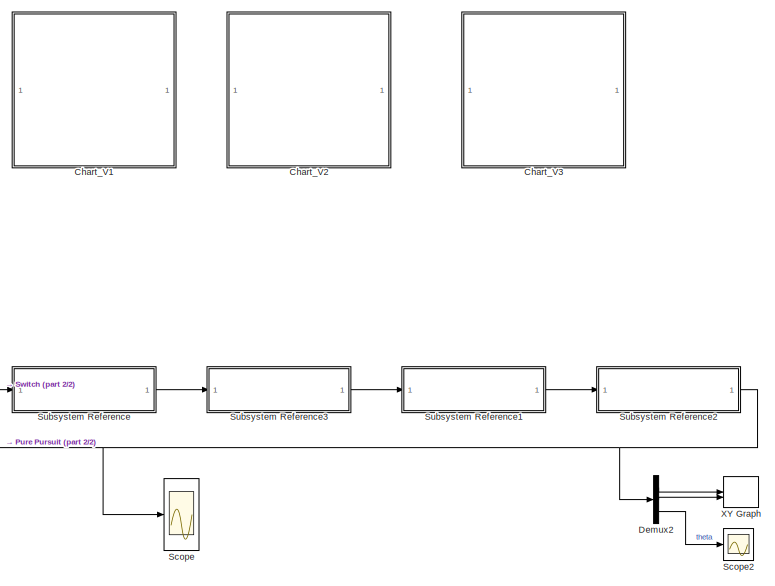
[diagram: root canvas - part 1/2, right side, full height]
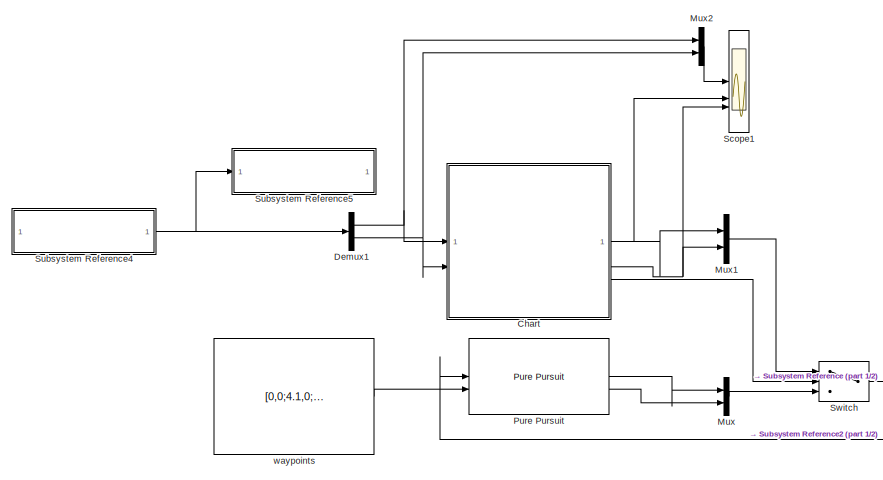
[diagram: root canvas - part 2/2, left side, full height]
MODEL slx_2fbee1cd0cb7
KIND model
CONFIG AbsTol = auto
CONFIG EnableMultiTasking = on
CONFIG FixedStep = auto
CONFIG MaxStep = auto
CONFIG MinStep = auto
CONFIG RelTol = 1e-3
CONFIG SampleTimeConstraint = Unconstrained
CONFIG SolverName = FixedStepAuto
CONFIG StartTime = 0.0
CONFIG StopTime = inf
WORKSPACE source: mxarray member
WORKSPACE d: Simulink.Parameter (value not decoded)
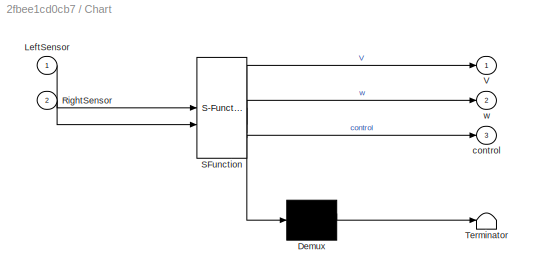
BLOCK [SubSystem] Chart
  ErrorFcn = Stateflow.Translate.translate
  PermitHierarchicalResolution = ExplicitOnly
  SFBlockType = Chart
  TreatAsAtomicUnit = on
BLOCK [Demux] Chart/ Demux 
  Outputs = 1
BLOCK [S-Function] Chart/ SFunction 
  EnableBusSupport = on
  FunctionName = sf_sfun
  PortCounts = [2 4]
  SFcnIsStateOwnerBlock = off
  SFunctionDeploymentMode = off
  Tag = Stateflow S-Function 3
BLOCK [Terminator] Chart/ Terminator 
BLOCK [Inport] Chart/LeftSensor
BLOCK [Inport] Chart/RightSensor
  Port = 2
BLOCK [Outport] Chart/V
BLOCK [Outport] Chart/control
  Port = 3
BLOCK [Outport] Chart/w
  Port = 2
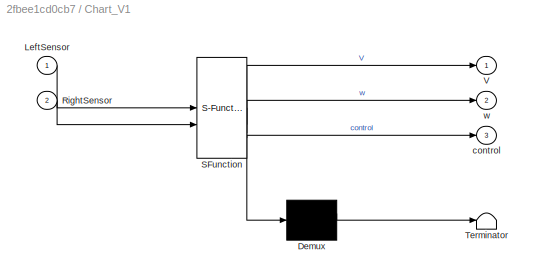
BLOCK [SubSystem] Chart_V1
  Commented = on
  ErrorFcn = Stateflow.Translate.translate
  PermitHierarchicalResolution = ExplicitOnly
  SFBlockType = Chart
  TreatAsAtomicUnit = on
BLOCK [Demux] Chart_V1/ Demux 
  Outputs = 1
BLOCK [S-Function] Chart_V1/ SFunction 
  EnableBusSupport = on
  FunctionName = sf_sfun
  PortCounts = [2 4]
  SFcnIsStateOwnerBlock = off
  SFunctionDeploymentMode = off
  Tag = Stateflow S-Function 1
BLOCK [Terminator] Chart_V1/ Terminator 
BLOCK [Inport] Chart_V1/LeftSensor
BLOCK [Inport] Chart_V1/RightSensor
  Port = 2
BLOCK [Outport] Chart_V1/V
BLOCK [Outport] Chart_V1/control
  Port = 3
BLOCK [Outport] Chart_V1/w
  Port = 2
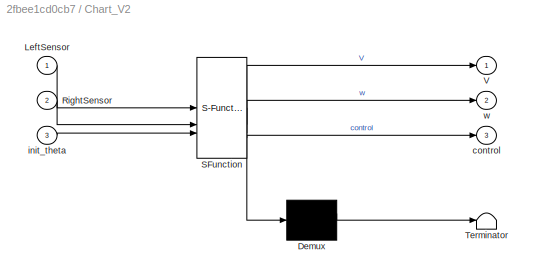
BLOCK [SubSystem] Chart_V2
  Commented = on
  ErrorFcn = Stateflow.Translate.translate
  PermitHierarchicalResolution = ExplicitOnly
  SFBlockType = Chart
  TreatAsAtomicUnit = on
BLOCK [Demux] Chart_V2/ Demux 
  Outputs = 1
BLOCK [S-Function] Chart_V2/ SFunction 
  EnableBusSupport = on
  FunctionName = sf_sfun
  PortCounts = [3 4]
  SFcnIsStateOwnerBlock = off
  SFunctionDeploymentMode = off
  Tag = Stateflow S-Function 2
BLOCK [Terminator] Chart_V2/ Terminator 
BLOCK [Inport] Chart_V2/LeftSensor
BLOCK [Inport] Chart_V2/RightSensor
  Port = 2
BLOCK [Outport] Chart_V2/V
BLOCK [Outport] Chart_V2/control
  Port = 3
BLOCK [Inport] Chart_V2/init_theta
  Port = 3
BLOCK [Outport] Chart_V2/w
  Port = 2
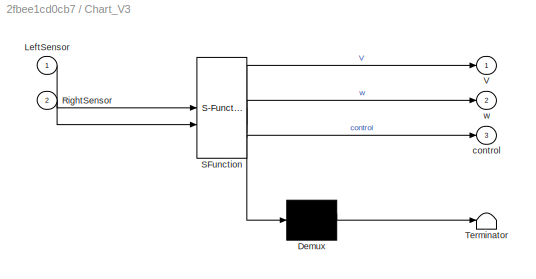
BLOCK [SubSystem] Chart_V3
  Commented = on
  ErrorFcn = Stateflow.Translate.translate
  PermitHierarchicalResolution = ExplicitOnly
  SFBlockType = Chart
  TreatAsAtomicUnit = on
BLOCK [Demux] Chart_V3/ Demux 
  Outputs = 1
BLOCK [S-Function] Chart_V3/ SFunction 
  EnableBusSupport = on
  FunctionName = sf_sfun
  PortCounts = [2 4]
  SFcnIsStateOwnerBlock = off
  SFunctionDeploymentMode = off
  Tag = Stateflow S-Function 4
BLOCK [Terminator] Chart_V3/ Terminator 
BLOCK [Inport] Chart_V3/LeftSensor
BLOCK [Inport] Chart_V3/RightSensor
  Port = 2
BLOCK [Outport] Chart_V3/V
BLOCK [Outport] Chart_V3/control
  Port = 3
BLOCK [Outport] Chart_V3/w
  Port = 2
BLOCK [Demux] Demux1
  Outputs = 2
BLOCK [Demux] Demux2
  Outputs = 3
BLOCK [Mux] Mux
  DisplayOption = bar
  Inputs = 2
BLOCK [Mux] Mux1
  DisplayOption = bar
  Inputs = 2
BLOCK [Mux] Mux2
  DisplayOption = bar
  Inputs = 2
BLOCK [Reference] Pure Pursuit  REF=robotalgslib/Pure Pursuit
  LibrarySourceBlock = navlib/Control Algorithms/Pure Pursuit
  SourceBlock = robotalgslib/Pure Pursuit
  SourceType = nav.slalgs.internal.PurePursuit
BLOCK [Scope] Scope
  Floating = off
  NumInputPorts = 1
  ScopeSpecificationString = Simulink.scopes.TimeScopeBlockCfg('CurrentConfiguration', extmgr.ConfigurationSet(extmgr.Configuration('Core','General UI',true),extmgr.Configuration('Core','Source UI',true),extmgr.Configuration('Sources','WiredSimulink',true),extmgr.Configuration('Visuals','Time Domain',true,'SerializedDisplays',{struct('MinYLimReal','-33.39657','MaxYLimReal','8.03669','YLabelReal','','MinYLimMag','0.00000','Max...<+1767ch>
BLOCK [Scope] Scope1
  Floating = off
  NumInputPorts = 3
  ScopeSpecificationString = Simulink.scopes.TimeScopeBlockCfg('CurrentConfiguration', extmgr.ConfigurationSet(extmgr.Configuration('Core','General UI',true),extmgr.Configuration('Core','Source UI',true),extmgr.Configuration('Sources','WiredSimulink',true,'DataLoggingVariableName','ScopeData1'),extmgr.Configuration('Visuals','Time Domain',true,'SerializedDisplays',{struct('MinYLimReal','-0.15051','MaxYLimReal','1.60473','YLab...<+3042ch>
BLOCK [Scope] Scope2
  Floating = off
  NumInputPorts = 1
  ScopeSpecificationString = Simulink.scopes.TimeScopeBlockCfg('CurrentConfiguration', extmgr.ConfigurationSet(extmgr.Configuration('Core','General UI',true),extmgr.Configuration('Core','Source UI',true),extmgr.Configuration('Sources','WiredSimulink',true,'DataLoggingVariableName','ScopeData2'),extmgr.Configuration('Visuals','Time Domain',true,'SerializedDisplays',{struct('MinYLimReal','-17.37263','MaxYLimReal','1.93029','YLa...<+1397ch>
BLOCK [SubSystem] Subsystem Reference
  ReferencedSubsystem = MCI
BLOCK [SubSystem] Subsystem Reference1
  ReferencedSubsystem = MCD
BLOCK [SubSystem] Subsystem Reference2
  ReferencedSubsystem = Odometria
BLOCK [SubSystem] Subsystem Reference3
  ReferencedSubsystem = PieroCV
BLOCK [SubSystem] Subsystem Reference4
  ReferencedSubsystem = Sonars
BLOCK [SubSystem] Subsystem Reference5
  ReferencedSubsystem = Senalizacion
BLOCK [Switch] Switch
  Criteria = u2 > Threshold
  InputSameDT = off
  OutDataTypeStr = double
  SaturateOnIntegerOverflow = off
BLOCK [Record] XY Graph
  CompatibilityTag = XY
  FileSettingsInternal = {"entries":[{"content":{"excelSettings":{"content":{},"type":"Streamout.ExcelSettings"}},"type":"Streamout.FileSettingStorage","uuid":""}],"packageUris":["http:\/\/schema.mathworks.com\/mf0\/streamout_blocks\/R2020a"],"version":"1.0"}
  Layout = [1 1]
  SignalsInternal = {"entries":[{"content":{"signals":[{"content":{"blockPath":[],"channel":[],"dimensions":[1],"domain":"","lineColor":"#a2142f","plots":[1],"port":1,"sid":[],"signalID":10135,"signalName":"Demux2:1"},"type":"RecordBlkView.Signal","uuid":""},{"content":{"blockPath":[],"channel":[],"dimensions":[1],"domain":"","lineColor":"#139fff","plots":[1],"port":2,"sid":[],"signalID":10138,"signalName":"Demux2:2"...<+188ch>
  VisualizationBindings = {"xyplotplugin":{"info":[{"series":[{"bindingParametersList":[{"parameter":"X-Axis","signalID":10135,"signalName":"Demux2:1"},{"parameter":"Y-Axis","signalID":10138,"signalName":"Demux2:2"}],"seriesID":45707}],"subplotID":1}]}}
BLOCK [Constant] waypoints
  Value = [0,0;4.1,0; 4.32, -11.2; 3.55, -11.2; 3.55, -15.58]
NET Chart:1 -> Mux1:1, Scope1:2
NET Chart:2 -> Mux1:2, Scope1:3
LINE Chart:3 -> Switch:2
NET Demux1:1 -> Chart:1, Mux2:1
NET Demux1:2 -> Chart:2, Mux2:2
LINE Demux2:1 -> XY Graph:1
LINE Demux2:2 -> XY Graph:2
LINE Demux2:3 -> Scope2:1
LINE Mux1:1 -> Switch:1
LINE Mux2:1 -> Scope1:1
LINE Mux:1 -> Switch:3
LINE Pure Pursuit:1 -> Mux:1
LINE Pure Pursuit:2 -> Mux:2
LINE Subsystem Reference1:1 -> Subsystem Reference2:1
NET Subsystem Reference2:1 -> Demux2:1, Pure Pursuit:1, Scope:1
LINE Subsystem Reference3:1 -> Subsystem Reference1:1
NET Subsystem Reference4:1 -> Demux1:1, Subsystem Reference5:1
LINE Subsystem Reference:1 -> Subsystem Reference3:1
LINE Switch:1 -> Subsystem Reference:1
LINE waypoints:1 -> Pure Pursuit:2
note: NET lines group one-source signal fan-out (src -> all destinations, sorted); 1:1 wires keep LINE
CHART Chart_V3 states=4 transitions=8
  STATE_LABEL 'SinObstaculos\nen:\ncontrol = 0;\nV = 0.205;\nw = 0;\n'
  STATE_LABEL 'ObstaculoIzq\nen:\ncontrol = 1;\nV = 0.1;\nw = - 0.3;\n'
  STATE_LABEL 'ObstaculoDcha\nen:\ncontrol = 1;\nV = 0.1;\nw = 0.3;\n'
  STATE_LABEL 'ObstaculoFrente\nen:\ncontrol = 1;\nV = - 0.15;\nw = w/2;'
CHART Chart_V1 states=4 transitions=8
  STATE_LABEL 'SinObstaculos\nen:\ncontrol = 0;\nV = 0.205;\nw = 0;\n'
  STATE_LABEL 'ObstaculoIzq\nen:\ncontrol = 1;\nV = 0.1;\nw = -0.5;\n'
  STATE_LABEL 'ObstaculoDcha\nen:\ncontrol = 1;\nV = 0.1;\nw = 0.5;\n'
  STATE_LABEL 'ObstaculoFrente\nen:\ncontrol = 1;\nV = 0;\nw = 0;'
CHART Chart_V2 states=4 transitions=8
  STATE_LABEL 'SinObstaculos\nen:\ncontrol = 0;\nV = 0.205;\nw = 0;\n'
  STATE_LABEL 'ObstaculoIzq\nen:\ncontrol = 1;\nV = 0.1;\nw = init_theta - pi/4;\n'
  STATE_LABEL 'ObstaculoDcha\nen:\ncontrol = 1;\nV = 0.1;\nw = init_theta + pi/4;\n'
  STATE_LABEL 'ObstaculoFrente\nen:\ncontrol = 1;\nV = 0;\nw = init_theta - pi/2;'
CHART Chart states=5 transitions=11
  STATE_LABEL 'EvitandoObstaculo\nen:\ncontrol = 1;\nV = 0.205;\nw = 0;\n'
  STATE_LABEL 'SinObstaculos\nen:\ncontrol = 0;\nV = 0.205;\nw = 0;\n'
  STATE_LABEL 'ObstaculoIzq\nen:\ncontrol = 1;\nV = 0.1;\nw = - 0.3;\n'
  STATE_LABEL 'ObstaculoDcha\nen:\ncontrol = 1;\nV = 0.1;\nw = 0.3;\n'
  STATE_LABEL 'ObstaculoFrente\nen:\ncontrol = 1;\nV = - 0.15;\nw = w/2;'
CHART  states=0 transitions=0
CHART  states=0 transitions=0
CHART  states=0 transitions=0
CHART  states=0 transitions=0
